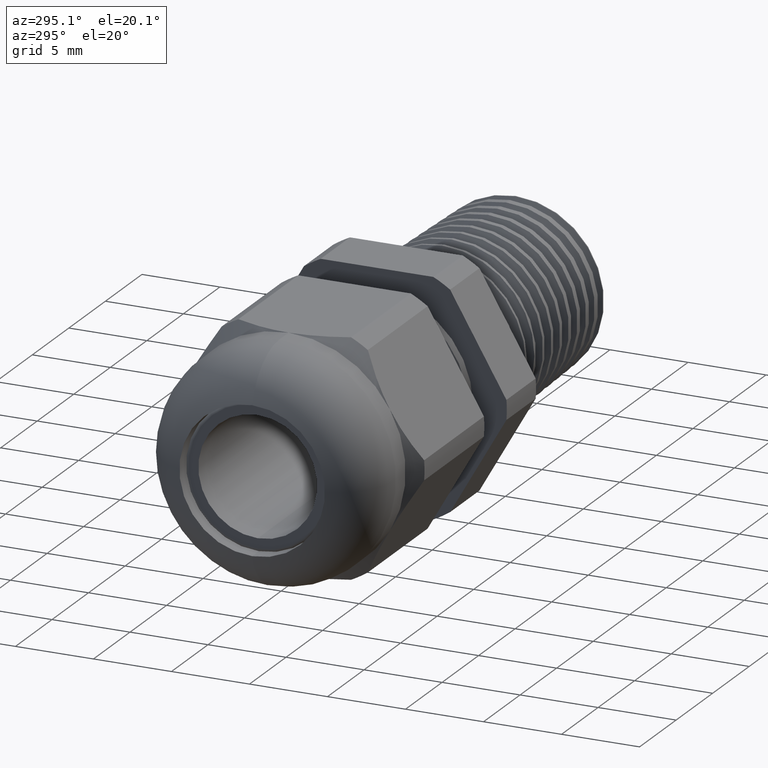
[diagram: clean part render]
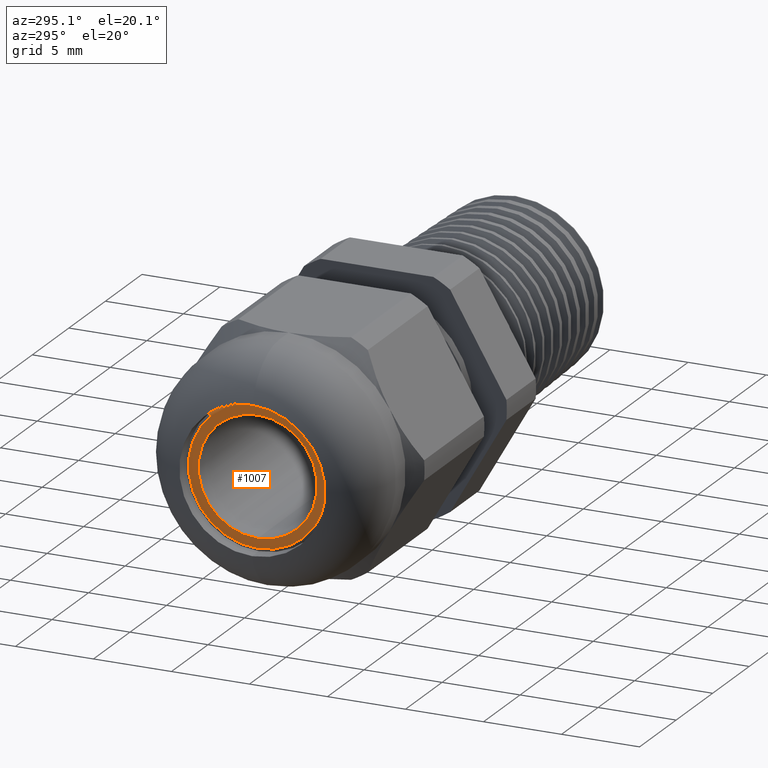
[diagram: same view with one face highlighted and labeled with its STEP entity id]
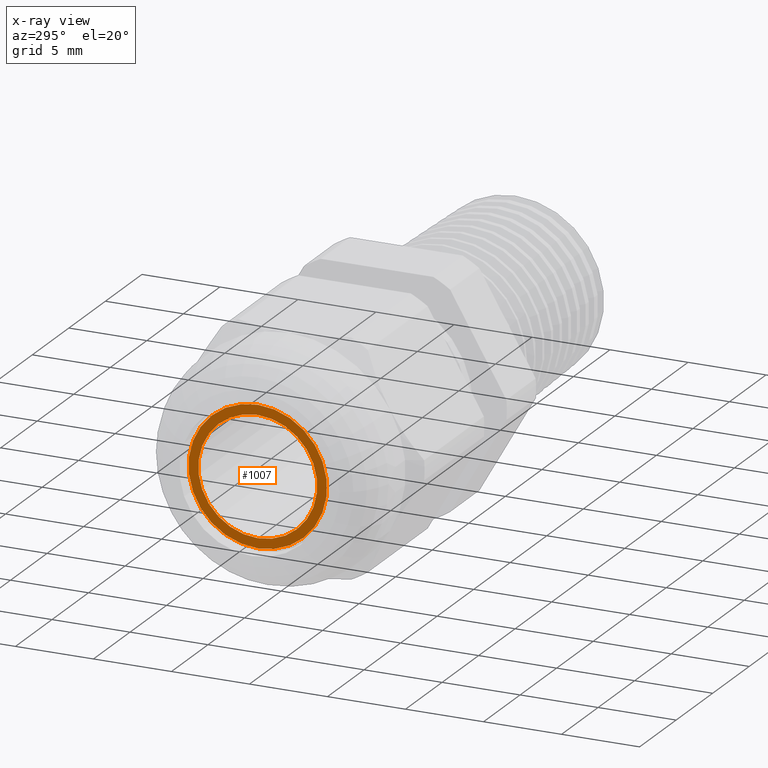
[diagram: x-ray of the same camera — body ghosted, the highlighted face saturated]
A machine part, auxiliary view. The second image highlights one B-rep face of the part: STEP entity #1007.
The next image is the same camera in x-ray: the body ghosted, the highlighted face saturated — about 0% of this face is hidden behind the body in this view.
In plain terms, the highlighted planar face has unit normal (-1, 0, 0).
Its self-contained STEP definition (entity closure, byte-faithful):
#948 = EDGE_CURVE ( 'NONE', #949, #950, #2948, .T. ) ;
#949 = VERTEX_POINT ( 'NONE', #3006 ) ;
#950 = VERTEX_POINT ( 'NONE', #3005 ) ;
#962 = EDGE_CURVE ( 'NONE', #963, #964, #2983, .T. ) ;
#963 = VERTEX_POINT ( 'NONE', #2978 ) ;
#964 = VERTEX_POINT ( 'NONE', #2977 ) ;
#1004 = EDGE_CURVE ( 'NONE', #964, #963, #3103, .T. ) ;
#1007 = ADVANCED_FACE ( 'NONE', ( #3098, #3097 ), #3096, .T. ) ;
#1008 = EDGE_LOOP ( 'NONE', ( #1009, #1011 ) ) ;
#1009 = ORIENTED_EDGE ( 'NONE', *, *, #1010, .T. ) ;
#1010 = EDGE_CURVE ( 'NONE', #950, #949, #3091, .T. ) ;
#1011 = ORIENTED_EDGE ( 'NONE', *, *, #948, .T. ) ;
#1012 = EDGE_LOOP ( 'NONE', ( #1013, #1014 ) ) ;
#1013 = ORIENTED_EDGE ( 'NONE', *, *, #962, .F. ) ;
#1014 = ORIENTED_EDGE ( 'NONE', *, *, #1004, .F. ) ;
#2948 = CIRCLE ( 'NONE', #3010, 0.1499999999999999900 ) ;
#2977 = CARTESIAN_POINT ( 'NONE',  ( -1.109999999999999900, 2.195179387471630700E-017, 0.1747499999999999900 ) ) ;
#2978 = CARTESIAN_POINT ( 'NONE',  ( -1.109999999999999900, 0.0000000000000000000, -0.1747499999999999900 ) ) ;
#2979 = DIRECTION ( 'NONE',  ( 0.0000000000000000000, 0.0000000000000000000, -1.000000000000000000 ) ) ;
#2980 = DIRECTION ( 'NONE',  ( 1.000000000000000000, 0.0000000000000000000, 0.0000000000000000000 ) ) ;
#2981 = CARTESIAN_POINT ( 'NONE',  ( -1.109999999999999900, 0.0000000000000000000, 0.0000000000000000000 ) ) ;
#2982 = AXIS2_PLACEMENT_3D ( 'NONE', #2981, #2980, #2979 ) ;
#2983 = CIRCLE ( 'NONE', #2982, 0.1747499999999999900 ) ;
#3005 = CARTESIAN_POINT ( 'NONE',  ( -1.109999999999999900, 0.0000000000000000000, -0.1499999999999999900 ) ) ;
#3006 = CARTESIAN_POINT ( 'NONE',  ( -1.109999999999999900, 1.836970198721029400E-017, 0.1499999999999999900 ) ) ;
#3007 = DIRECTION ( 'NONE',  ( 0.0000000000000000000, 0.0000000000000000000, -1.000000000000000000 ) ) ;
#3008 = DIRECTION ( 'NONE',  ( 1.000000000000000000, 0.0000000000000000000, 0.0000000000000000000 ) ) ;
#3009 = CARTESIAN_POINT ( 'NONE',  ( -1.109999999999999900, 0.0000000000000000000, 0.0000000000000000000 ) ) ;
#3010 = AXIS2_PLACEMENT_3D ( 'NONE', #3009, #3008, #3007 ) ;
#3087 = DIRECTION ( 'NONE',  ( 0.0000000000000000000, 0.0000000000000000000, -1.000000000000000000 ) ) ;
#3088 = DIRECTION ( 'NONE',  ( 1.000000000000000000, 0.0000000000000000000, 0.0000000000000000000 ) ) ;
#3089 = CARTESIAN_POINT ( 'NONE',  ( -1.109999999999999900, 0.0000000000000000000, 0.0000000000000000000 ) ) ;
#3090 = AXIS2_PLACEMENT_3D ( 'NONE', #3089, #3088, #3087 ) ;
#3091 = CIRCLE ( 'NONE', #3090, 0.1499999999999999900 ) ;
#3092 = DIRECTION ( 'NONE',  ( 0.0000000000000000000, 0.0000000000000000000, 1.000000000000000000 ) ) ;
#3093 = DIRECTION ( 'NONE',  ( -1.000000000000000000, 0.0000000000000000000, 0.0000000000000000000 ) ) ;
#3094 = CARTESIAN_POINT ( 'NONE',  ( -1.109999999999999900, 0.1499999999999999900, 0.0000000000000000000 ) ) ;
#3095 = AXIS2_PLACEMENT_3D ( 'NONE', #3094, #3093, #3092 ) ;
#3096 = PLANE ( 'NONE',  #3095 ) ;
#3097 = FACE_OUTER_BOUND ( 'NONE', #1012, .T. ) ;
#3098 = FACE_BOUND ( 'NONE', #1008, .T. ) ;
#3099 = DIRECTION ( 'NONE',  ( 0.0000000000000000000, 0.0000000000000000000, -1.000000000000000000 ) ) ;
#3100 = DIRECTION ( 'NONE',  ( 1.000000000000000000, 0.0000000000000000000, 0.0000000000000000000 ) ) ;
#3101 = CARTESIAN_POINT ( 'NONE',  ( -1.109999999999999900, 0.0000000000000000000, 0.0000000000000000000 ) ) ;
#3102 = AXIS2_PLACEMENT_3D ( 'NONE', #3101, #3100, #3099 ) ;
#3103 = CIRCLE ( 'NONE', #3102, 0.1747499999999999900 ) ;